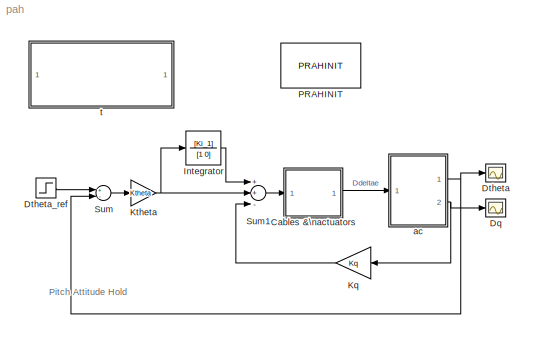
MODEL pah
KIND model
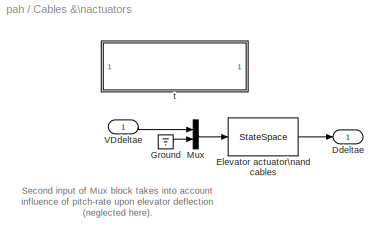
BLOCK [SubSystem] Cables &\nactuators
  Ports = [1, 1]
  RequestExecContextInheritance = off
  SID = 1
  ShowPortLabels = none
BLOCK [Outport] Cables &\nactuators/Ddeltae
  IconDisplay = Port number
  SID = 7
BLOCK [StateSpace] Cables &\nactuators/Elevator actuator\nand cables
  A = Aelv
  B = Belv
  C = Celv
  D = Delv
  InitialCondition = 0
  Ports = [1, 1]
  SID = 3
BLOCK [Ground] Cables &\nactuators/Ground
  SID = 4
BLOCK [Mux] Cables &\nactuators/Mux
  Inputs = 2
  Ports = [2, 1]
  SID = 5
BLOCK [Inport] Cables &\nactuators/VDdeltae
  IconDisplay = Port number
  SID = 2
BLOCK [SubSystem] Cables &\nactuators/t
  OpenFcn = browse actuatr
  Ports = []
  RequestExecContextInheritance = off
  SID = 6
  ShowPortLabels = none
BLOCK [Scope] Dq
  Floating = off
  NumInputPorts = 1
  Ports = [1]
  SID = 9
  ScopeSpecificationString = Simulink.scopes.TimeScopeBlockCfg('CurrentConfiguration', extmgr.ConfigurationSet(extmgr.Configuration('Core','General UI',true),extmgr.Configuration('Core','Source UI',true),extmgr.Configuration('Sources','WiredSimulink',true,'DataLoggingLimitDataPoints',true,'DataLoggingDecimation','1','DataLoggingDecimateData',true,'DataLoggingSaveFormat','Array'),extmgr.Configuration('Visuals','Time Domain',tr...<+1684ch>
BLOCK [Scope] Dtheta
  Floating = off
  NumInputPorts = 1
  Ports = [1]
  SID = 10
  ScopeSpecificationString = Simulink.scopes.TimeScopeBlockCfg('CurrentConfiguration', extmgr.ConfigurationSet(extmgr.Configuration('Core','General UI',true),extmgr.Configuration('Core','Source UI',true),extmgr.Configuration('Sources','WiredSimulink',true,'DataLoggingLimitDataPoints',true,'DataLoggingDecimation','1','DataLoggingDecimateData',true,'DataLoggingSaveFormat','Array'),extmgr.Configuration('Visuals','Time Domain',tr...<+1703ch>
BLOCK [Step] Dtheta_ref
  After = 1*pi/180
  SID = 11
  SampleTime = 0
  Time = 0
BLOCK [TransferFcn] Integrator
  Denominator = [1 0]
  Numerator = [Ki_1]
  SID = 12
BLOCK [Gain] Kq
  Gain = Kq
  SID = 13
BLOCK [Gain] Ktheta
  Gain = Ktheta
  SID = 14
BLOCK [Reference] PRAHINIT  REF=fbuttons/PRAHINIT
  Ports = []
  SID = 15
  SourceBlock = fbuttons/PRAHINIT
BLOCK [Sum] Sum
  Inputs = +-
  Ports = [2, 1]
  SID = 16
BLOCK [Sum] Sum1
  Inputs = ++-
  Ports = [3, 1]
  SID = 17
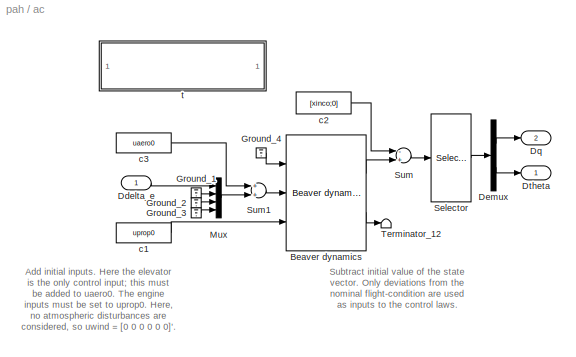
BLOCK [SubSystem] ac
  Ports = [1, 2]
  RequestExecContextInheritance = off
  SID = 18
  ShowPortLabels = none
BLOCK [Reference] ac/Beaver dynamics  REF=fdclib10/Beaver dynamics\nfor autopilot models
  Ports = [3, 2]
  SID = 20
  SourceBlock = fdclib10/Beaver dynamics\nfor autopilot models
  SourceType = SubSystem
BLOCK [Inport] ac/Ddelta_e
  IconDisplay = Port number
  SID = 19
BLOCK [Demux] ac/Demux
  Outputs = 2
  Ports = [1, 2]
  SID = 21
BLOCK [Outport] ac/Dq
  IconDisplay = Port number
  Port = 2
  SID = 36
BLOCK [Outport] ac/Dtheta
  IconDisplay = Port number
  SID = 35
BLOCK [Ground] ac/Ground_1
  SID = 22
BLOCK [Ground] ac/Ground_2
  SID = 23
BLOCK [Ground] ac/Ground_3
  SID = 24
BLOCK [Ground] ac/Ground_4
  SID = 25
BLOCK [Mux] ac/Mux
  Ports = [4, 1]
  SID = 26
BLOCK [Selector] ac/Selector
  IndexOptions = Index vector (dialog)
  Indices = [5 8]
  InputPortWidth = 13
  OutputSizes = 1
  Ports = [1, 1]
  SID = 27
BLOCK [Sum] ac/Sum
  Inputs = -+
  Ports = [2, 1]
  SID = 28
BLOCK [Sum] ac/Sum1
  Ports = [2, 1]
  SID = 29
BLOCK [Terminator] ac/Terminator_12
  SID = 30
BLOCK [Constant] ac/c1
  SID = 31
  Value = uprop0
BLOCK [Constant] ac/c2
  SID = 32
  Value = [xinco;0]
BLOCK [Constant] ac/c3
  SID = 33
  Value = uaero0
BLOCK [SubSystem] ac/t
  Ports = []
  RequestExecContextInheritance = off
  SID = 34
  ShowPortLabels = none
BLOCK [SubSystem] t
  OpenFcn = browse apilot
  Ports = []
  RequestExecContextInheritance = off
  SID = 39
  ShowPortLabels = none
ANNOTATION (root): Pitch Attitude Hold
ANNOTATION Cables &\nactuators: Second input of Mux block takes into account\ninfluence of pitch-rate upon elevator deflection\n(neglected here).
ANNOTATION ac: Add initial inputs. Here the elevator\nis the only control input; this must \nbe added to uaero0. The engine\ninputs must be set to uprop0. Here,\nno atmospheric disturbances are\nconsidered, so uwind = [0 0 0 0 0 0]'.
ANNOTATION ac: Subtract initial value of the state \nvector. Only deviations from the \nnominal flight-condition are used \nas inputs to the control laws.
LINE Cables &\nactuators/Elevator actuator\nand cables:1 -> Cables &\nactuators/Ddeltae:1
LINE Cables &\nactuators/Ground:1 -> Cables &\nactuators/Mux:2
LINE Cables &\nactuators/Mux:1 -> Cables &\nactuators/Elevator actuator\nand cables:1
LINE Cables &\nactuators/VDdeltae:1 -> Cables &\nactuators/Mux:1
LINE Cables &\nactuators:1 -> ac:1
LINE Dtheta_ref:1 -> Sum:1
LINE Integrator:1 -> Sum1:1
LINE Kq:1 -> Sum1:3
NET Ktheta:1 -> Integrator:1, Sum1:2
LINE Sum1:1 -> Cables &\nactuators:1
LINE Sum:1 -> Ktheta:1
LINE ac/Beaver dynamics:1 -> ac/Sum:2
LINE ac/Beaver dynamics:2 -> ac/Terminator_12:1
LINE ac/Ddelta_e:1 -> ac/Mux:1
LINE ac/Demux:1 -> ac/Dq:1
LINE ac/Demux:2 -> ac/Dtheta:1
LINE ac/Ground_1:1 -> ac/Mux:2
LINE ac/Ground_2:1 -> ac/Mux:3
LINE ac/Ground_3:1 -> ac/Mux:4
LINE ac/Ground_4:1 -> ac/Beaver dynamics:1
LINE ac/Mux:1 -> ac/Sum1:2
LINE ac/Selector:1 -> ac/Demux:1
LINE ac/Sum1:1 -> ac/Beaver dynamics:2
LINE ac/Sum:1 -> ac/Selector:1
LINE ac/c1:1 -> ac/Beaver dynamics:3
LINE ac/c2:1 -> ac/Sum:1
LINE ac/c3:1 -> ac/Sum1:1
NET ac:1 -> Dtheta:1, Sum:2
NET ac:2 -> Dq:1, Kq:1
note: NET lines group one-source signal fan-out (src -> all destinations, sorted); 1:1 wires keep LINE
